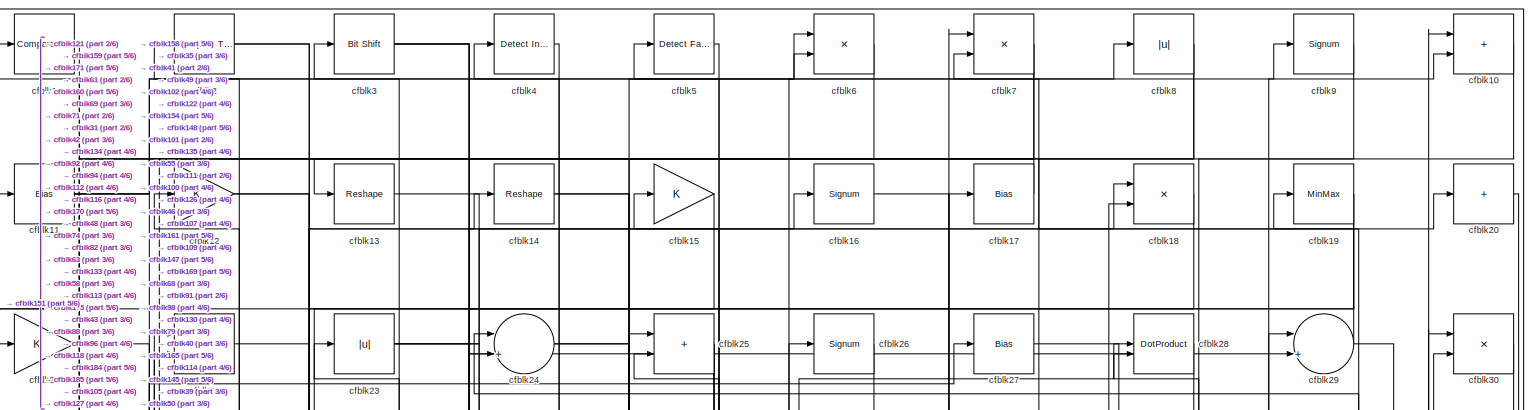
[diagram: root canvas - part 1/6, full width, top band]
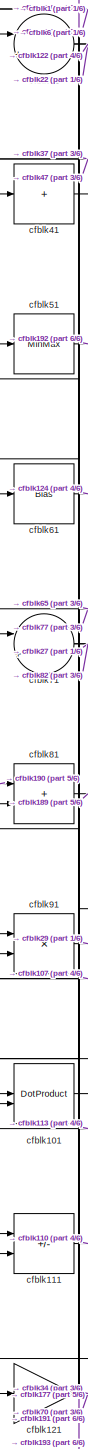
[diagram: root canvas - part 2/6, middle left region]
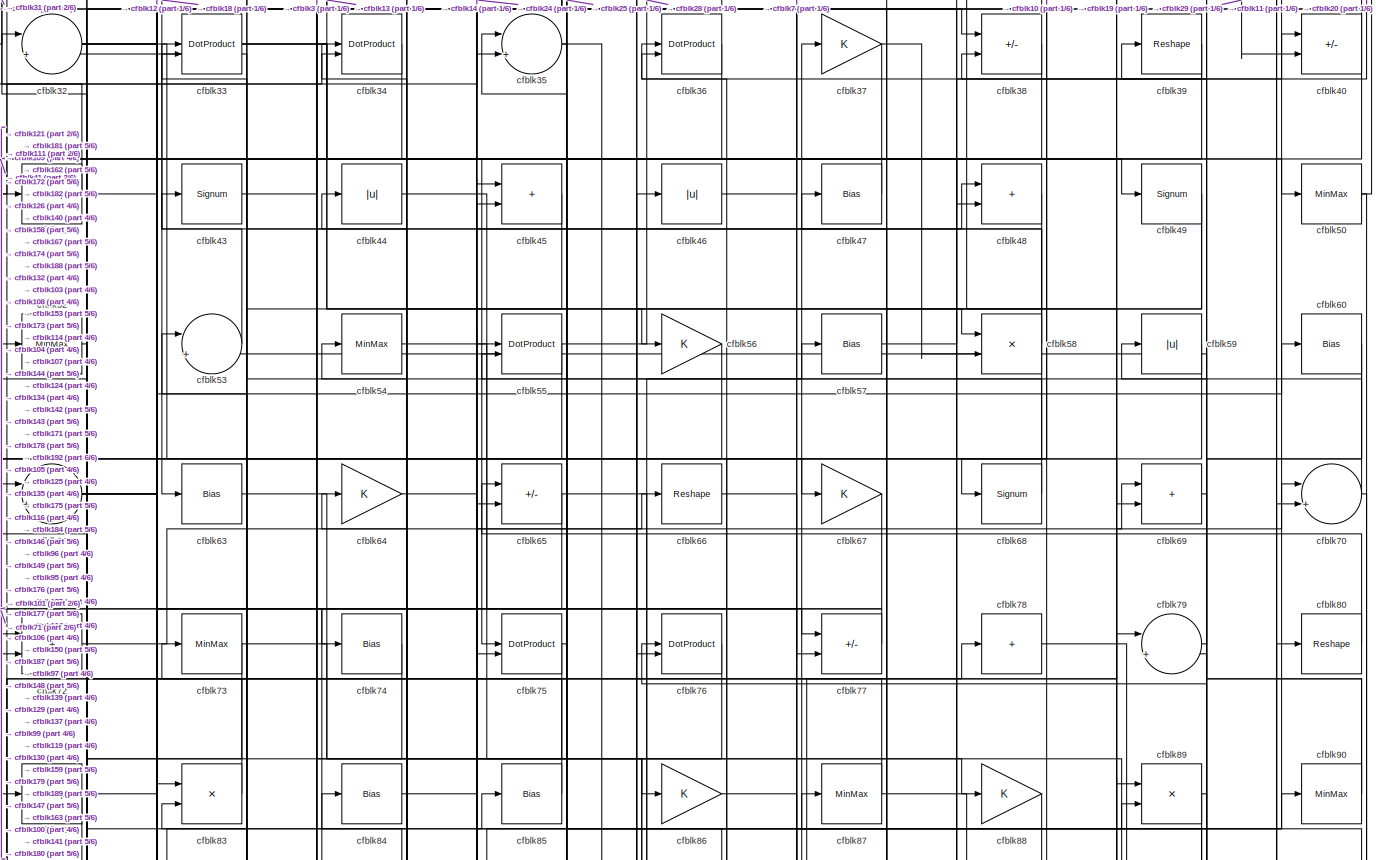
[diagram: root canvas - part 3/6, full width, top band]
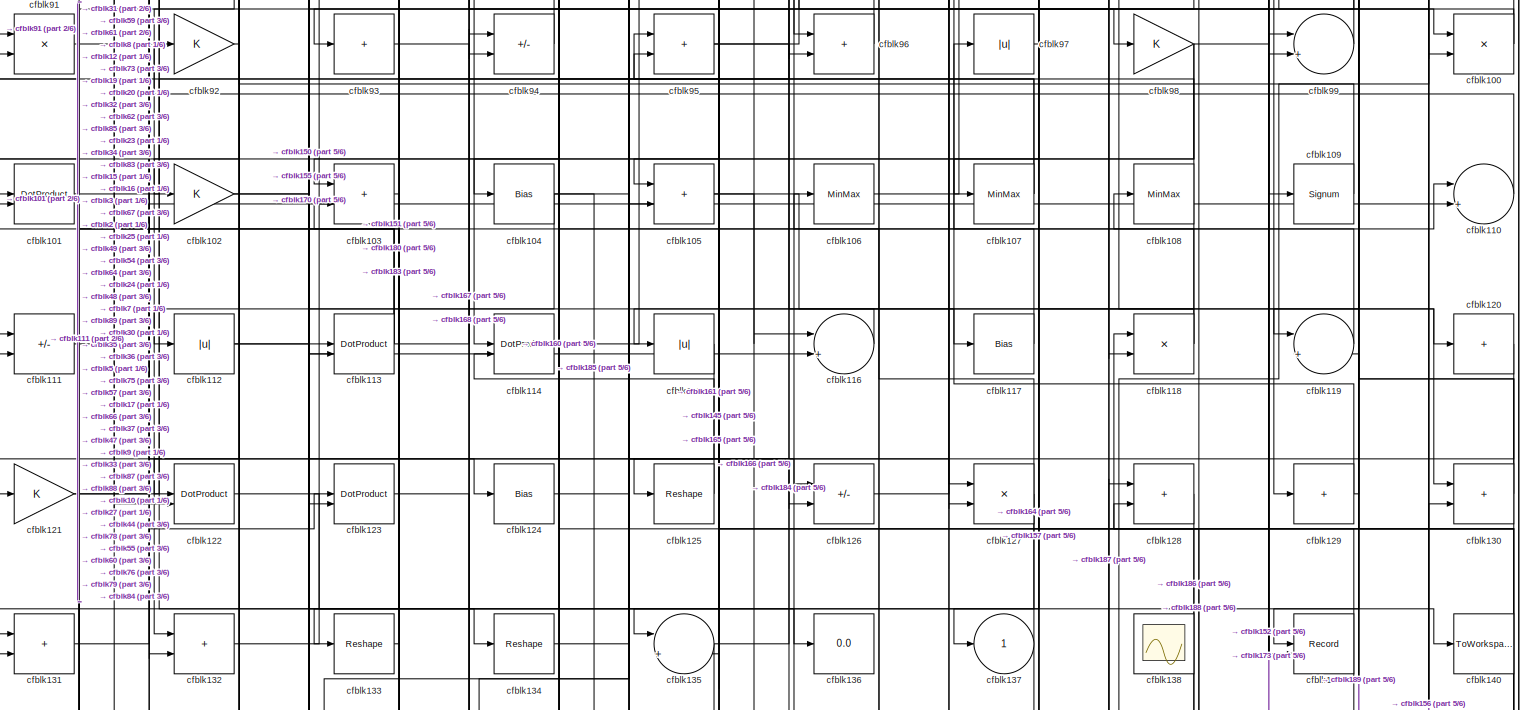
[diagram: root canvas - part 4/6, full width, middle band]
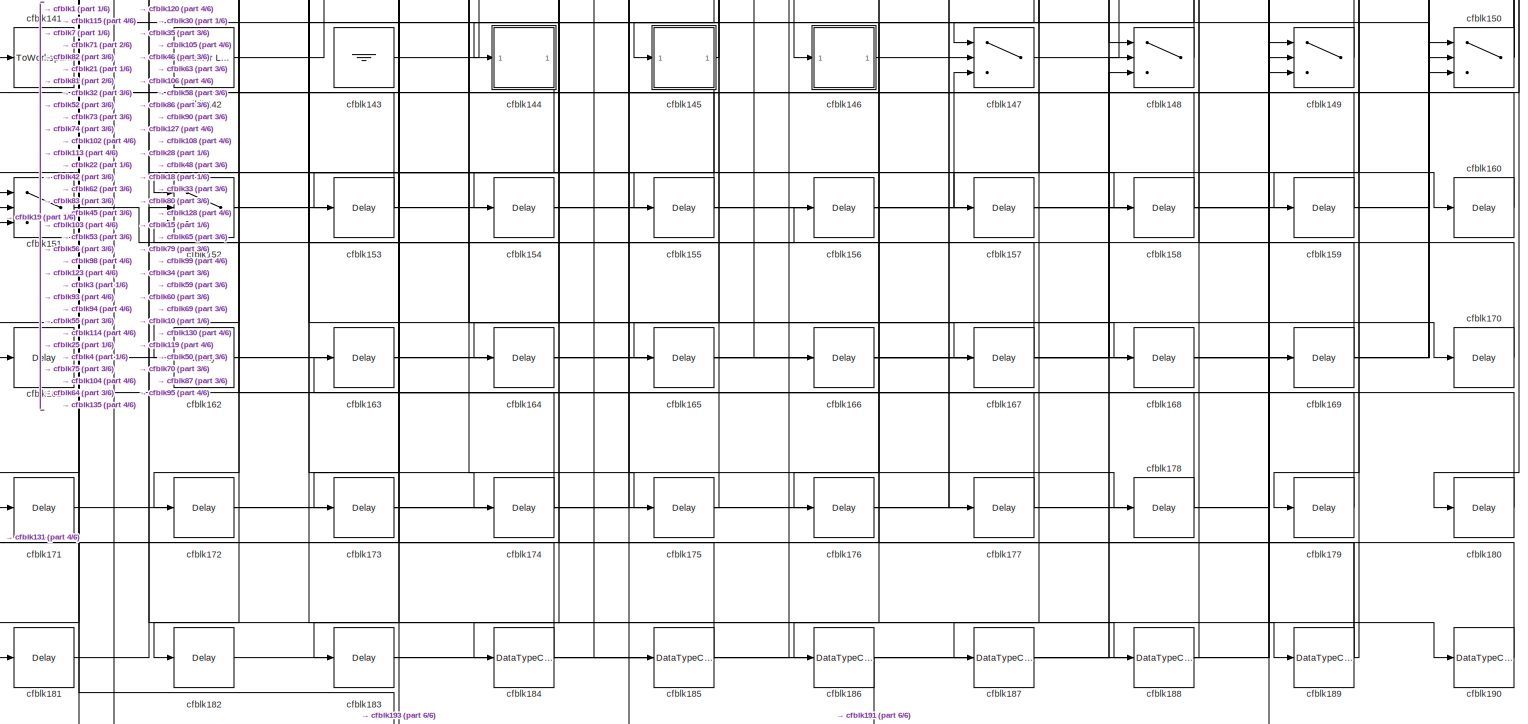
[diagram: root canvas - part 5/6, full width, bottom band]
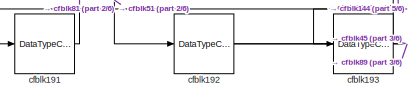
[diagram: root canvas - part 6/6, bottom left region]
MODEL slx_4fd2ff61f84c
KIND model
CONFIG AbsTol = auto
CONFIG EnableMultiTasking = off
CONFIG FixedStep = auto
CONFIG MaxStep = auto
CONFIG MinStep = auto
CONFIG RelTol = 1e-3
CONFIG SampleTimeConstraint = Unconstrained
CONFIG SolverName = VariableStepAuto
CONFIG StartTime = 0.0
CONFIG StopTime = 10.0
BLOCK [Reference] cfblk1  REF=hdlsllib/Logic and Bit
Operations/Compare
To Zero
  SourceBlock = hdlsllib/Logic and Bit\nOperations/Compare\nTo Zero
  SourceType = Compare To Zero
BLOCK [Sum] cfblk10
  IconShape = rectangular
BLOCK [Product] cfblk100
  Inputs = */
  RndMeth = Zero
  SaturateOnIntegerOverflow = on
BLOCK [DotProduct] cfblk101
  OutDataTypeStr = Inherit: Inherit via internal rule
BLOCK [Gain] cfblk102
BLOCK [Sum] cfblk103
  IconShape = rectangular
BLOCK [Bias] cfblk104
  Bias = 0.0
  SaturateOnIntegerOverflow = off
BLOCK [Sum] cfblk105
  IconShape = rectangular
BLOCK [MinMax] cfblk106
BLOCK [MinMax] cfblk107
BLOCK [MinMax] cfblk108
BLOCK [Signum] cfblk109
BLOCK [Bias] cfblk11
  Bias = 0.0
  SaturateOnIntegerOverflow = off
BLOCK [Sum] cfblk110
  Inputs = |++
BLOCK [Sum] cfblk111
  IconShape = rectangular
  Inputs = +-
BLOCK [Abs] cfblk112
  SaturateOnIntegerOverflow = off
BLOCK [DotProduct] cfblk113
  OutDataTypeStr = Inherit: Inherit via internal rule
BLOCK [DotProduct] cfblk114
  OutDataTypeStr = Inherit: Inherit via internal rule
BLOCK [Abs] cfblk115
  SaturateOnIntegerOverflow = off
BLOCK [Sum] cfblk116
  Inputs = |++
BLOCK [Bias] cfblk117
  Bias = 0.0
  SaturateOnIntegerOverflow = off
BLOCK [Product] cfblk118
  Inputs = */
  RndMeth = Zero
  SaturateOnIntegerOverflow = on
BLOCK [Sum] cfblk119
  Inputs = |++
BLOCK [Gain] cfblk12
BLOCK [Sum] cfblk120
  IconShape = rectangular
  Inputs = +
BLOCK [Gain] cfblk121
BLOCK [DotProduct] cfblk122
  OutDataTypeStr = Inherit: Inherit via internal rule
BLOCK [DotProduct] cfblk123
  OutDataTypeStr = Inherit: Inherit via internal rule
BLOCK [Bias] cfblk124
  Bias = 0.0
  SaturateOnIntegerOverflow = off
BLOCK [Reshape] cfblk125
BLOCK [Sum] cfblk126
  IconShape = rectangular
  Inputs = +-
BLOCK [Product] cfblk127
  Inputs = */
  RndMeth = Zero
  SaturateOnIntegerOverflow = on
BLOCK [Sum] cfblk128
  IconShape = rectangular
BLOCK [Sum] cfblk129
  IconShape = rectangular
  Inputs = +
BLOCK [Reshape] cfblk13
BLOCK [Sum] cfblk130
  IconShape = rectangular
BLOCK [Sum] cfblk131
  IconShape = rectangular
BLOCK [Sum] cfblk132
  IconShape = rectangular
BLOCK [Reshape] cfblk133
BLOCK [Reshape] cfblk134
BLOCK [Sum] cfblk135
  Inputs = |++
BLOCK [Display] cfblk136
  Decimation = 1
BLOCK [Outport] cfblk137
  VectorParamsAs1DForOutWhenUnconnected = off
BLOCK [Scope] cfblk138
  Floating = on
  NumInputPorts = 1
  ScopeSpecificationString = Simulink.scopes.TimeScopeBlockCfg('CurrentConfiguration', extmgr.ConfigurationSet(extmgr.Configuration('Core','General UI',true,'FigureColor',[0.156862745098039 0.156862745098039 0.156862745098039]),extmgr.Configuration('Core','Source UI',true),extmgr.Configuration('Sources','WiredSimulink',true,'DataLoggingVariableName','ScopeData1','DataLoggingSaveFormat','StructureWithTime','DataLoggingLimitDat...<+2713ch>
BLOCK [Record] cfblk139
  CompatibilityTag = XY
  FileSettingsInternal = {"entries":[{"content":{"excelSettings":{"content":{},"type":"Streamout.ExcelSettings"}},"type":"Streamout.FileSettingStorage","uuid":""}],"packageUris":["http:\/\/schema.mathworks.com\/mf0\/streamout_blocks\/R2020a"],"version":"1.0"}
  Layout = [1 1]
  SignalsInternal = {"entries":[{"content":{},"type":"RecordBlkView.InputSignals","uuid":""}],"packageUris":["http:\/\/schema.mathworks.com\/mf0\/streamout_blocks\/R2020a"],"version":"1.0"}
  VisualizationBindings = {"xyplotplugin":{"info":[{"series":[{"bindingParametersList":[{"parameter":"X-Axis","signalID":6435,"signalName":"cfblk89"},{"parameter":"Y-Axis","signalID":6439,"signalName":"cfblk33"}],"seriesID":26884}],"subplotID":1}]}}
  st = -1
BLOCK [Reshape] cfblk14
BLOCK [ToWorkspace] cfblk140
  MaxDataPoints = inf
  SampleTime = -1
  SaveFormat = Timeseries
  VariableName = simout
BLOCK [ToWorkspace] cfblk141
  MaxDataPoints = inf
  SampleTime = -1
  SaveFormat = Timeseries
  VariableName = simout
BLOCK [Reference] cfblk142  REF=hdlsllib/Sources/Counter
Limited
  SourceBlock = hdlsllib/Sources/Counter\nLimited
  SourceType = Counter Limited
BLOCK [Ground] cfblk143
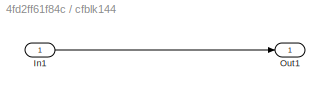
BLOCK [SubSystem] cfblk144
  LibrarySourceBlock = hdlsllib/Ports &\nSubsystems/Subsystem
BLOCK [Inport] cfblk144/In1
BLOCK [Outport] cfblk144/Out1
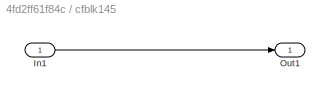
BLOCK [SubSystem] cfblk145
  LibrarySourceBlock = hdlsllib/Ports &\nSubsystems/Subsystem
BLOCK [Inport] cfblk145/In1
BLOCK [Outport] cfblk145/Out1
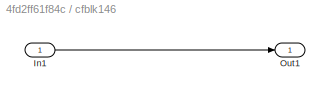
BLOCK [SubSystem] cfblk146
  LibrarySourceBlock = hdlsllib/Ports &\nSubsystems/Subsystem
BLOCK [Inport] cfblk146/In1
BLOCK [Outport] cfblk146/Out1
BLOCK [Switch] cfblk147
  InputSameDT = off
  SaturateOnIntegerOverflow = off
BLOCK [Switch] cfblk148
  InputSameDT = off
  SaturateOnIntegerOverflow = off
BLOCK [Switch] cfblk149
  InputSameDT = off
  SaturateOnIntegerOverflow = off
BLOCK [Gain] cfblk15
BLOCK [Switch] cfblk150
  InputSameDT = off
  SaturateOnIntegerOverflow = off
BLOCK [Switch] cfblk151
  InputSameDT = off
  SaturateOnIntegerOverflow = off
BLOCK [Switch] cfblk152
  InputSameDT = off
  SaturateOnIntegerOverflow = off
BLOCK [Delay] cfblk153
  InputPortMap = u0
  SampleTime = 1
BLOCK [Delay] cfblk154
  InputPortMap = u0
  SampleTime = 1
BLOCK [Delay] cfblk155
  InputPortMap = u0
  SampleTime = 1
BLOCK [Delay] cfblk156
  InputPortMap = u0
  SampleTime = 1
BLOCK [Delay] cfblk157
  InputPortMap = u0
  SampleTime = 1
BLOCK [Delay] cfblk158
  InputPortMap = u0
  SampleTime = 1
BLOCK [Delay] cfblk159
  InputPortMap = u0
  SampleTime = 1
BLOCK [Signum] cfblk16
BLOCK [Delay] cfblk160
  InputPortMap = u0
  SampleTime = 1
BLOCK [Delay] cfblk161
  InputPortMap = u0
  SampleTime = 1
BLOCK [Delay] cfblk162
  InputPortMap = u0
  SampleTime = 1
BLOCK [Delay] cfblk163
  InputPortMap = u0
  SampleTime = 1
BLOCK [Delay] cfblk164
  InputPortMap = u0
  SampleTime = 1
BLOCK [Delay] cfblk165
  InputPortMap = u0
  SampleTime = 1
BLOCK [Delay] cfblk166
  InputPortMap = u0
  SampleTime = 1
BLOCK [Delay] cfblk167
  InputPortMap = u0
  SampleTime = 1
BLOCK [Delay] cfblk168
  InputPortMap = u0
  SampleTime = 1
BLOCK [Delay] cfblk169
  InputPortMap = u0
  SampleTime = 1
BLOCK [Bias] cfblk17
  Bias = 0.0
  SaturateOnIntegerOverflow = off
BLOCK [Delay] cfblk170
  InputPortMap = u0
  SampleTime = 1
BLOCK [Delay] cfblk171
  InputPortMap = u0
  SampleTime = 1
BLOCK [Delay] cfblk172
  InputPortMap = u0
  SampleTime = 1
BLOCK [Delay] cfblk173
  InputPortMap = u0
  SampleTime = 1
BLOCK [Delay] cfblk174
  InputPortMap = u0
  SampleTime = 1
BLOCK [Delay] cfblk175
  InputPortMap = u0
  SampleTime = 1
BLOCK [Delay] cfblk176
  InputPortMap = u0
  SampleTime = 1
BLOCK [Delay] cfblk177
  InputPortMap = u0
  SampleTime = 1
BLOCK [Delay] cfblk178
  InputPortMap = u0
  SampleTime = 1
BLOCK [Delay] cfblk179
  InputPortMap = u0
  SampleTime = 1
BLOCK [Product] cfblk18
  Inputs = */
  RndMeth = Zero
  SaturateOnIntegerOverflow = on
BLOCK [Delay] cfblk180
  InputPortMap = u0
  SampleTime = 1
BLOCK [Delay] cfblk181
  InputPortMap = u0
  SampleTime = 1
BLOCK [Delay] cfblk182
  InputPortMap = u0
  SampleTime = 1
BLOCK [Delay] cfblk183
  InputPortMap = u0
  SampleTime = 1
BLOCK [DataTypeConversion] cfblk184
  RndMeth = Floor
  SaturateOnIntegerOverflow = off
BLOCK [DataTypeConversion] cfblk185
  OutDataTypeStr = uint8
  RndMeth = Floor
  SaturateOnIntegerOverflow = off
BLOCK [DataTypeConversion] cfblk186
  RndMeth = Floor
  SaturateOnIntegerOverflow = off
BLOCK [DataTypeConversion] cfblk187
  OutDataTypeStr = uint8
  RndMeth = Floor
  SaturateOnIntegerOverflow = off
BLOCK [DataTypeConversion] cfblk188
  OutDataTypeStr = uint8
  RndMeth = Floor
  SaturateOnIntegerOverflow = off
BLOCK [DataTypeConversion] cfblk189
  RndMeth = Floor
  SaturateOnIntegerOverflow = off
BLOCK [MinMax] cfblk19
BLOCK [DataTypeConversion] cfblk190
  OutDataTypeStr = uint8
  RndMeth = Floor
  SaturateOnIntegerOverflow = off
BLOCK [DataTypeConversion] cfblk191
  OutDataTypeStr = uint8
  RndMeth = Floor
  SaturateOnIntegerOverflow = off
BLOCK [DataTypeConversion] cfblk192
  RndMeth = Floor
  SaturateOnIntegerOverflow = off
BLOCK [DataTypeConversion] cfblk193
  OutDataTypeStr = uint8
  RndMeth = Floor
  SaturateOnIntegerOverflow = off
BLOCK [Reference] cfblk2  REF=hdlsllib/Logic and Bit
Operations/Compare
To Constant
  SourceBlock = hdlsllib/Logic and Bit\nOperations/Compare\nTo Constant
  SourceType = Compare To Constant
BLOCK [Sum] cfblk20
  IconShape = rectangular
  Inputs = +
BLOCK [Gain] cfblk21
BLOCK [Product] cfblk22
  Inputs = */
  RndMeth = Zero
  SaturateOnIntegerOverflow = on
BLOCK [Abs] cfblk23
  SaturateOnIntegerOverflow = off
BLOCK [Sum] cfblk24
  Inputs = |++
BLOCK [Sum] cfblk25
  IconShape = rectangular
BLOCK [Signum] cfblk26
BLOCK [Bias] cfblk27
  Bias = 0.0
  SaturateOnIntegerOverflow = off
BLOCK [DotProduct] cfblk28
  OutDataTypeStr = Inherit: Inherit via internal rule
BLOCK [Sum] cfblk29
  Inputs = |++
BLOCK [Reference] cfblk3  REF=hdlsllib/Logic and Bit
Operations/Bit Shift
  SourceBlock = hdlsllib/Logic and Bit\nOperations/Bit Shift
  SourceType = Bit Shift
BLOCK [Product] cfblk30
  Inputs = */
  RndMeth = Zero
  SaturateOnIntegerOverflow = on
BLOCK [Sum] cfblk31
  Inputs = |++
BLOCK [Sum] cfblk32
  Inputs = |++
BLOCK [DotProduct] cfblk33
  OutDataTypeStr = Inherit: Inherit via internal rule
BLOCK [DotProduct] cfblk34
  OutDataTypeStr = Inherit: Inherit via internal rule
BLOCK [Sum] cfblk35
  Inputs = |++
BLOCK [DotProduct] cfblk36
  OutDataTypeStr = Inherit: Inherit via internal rule
BLOCK [Gain] cfblk37
BLOCK [Sum] cfblk38
  IconShape = rectangular
  Inputs = +-
BLOCK [Reshape] cfblk39
BLOCK [Reference] cfblk4  REF=simulink/Logic and Bit
Operations/Detect
Increase
  LibrarySourceBlock = hdlsllib/Logic and Bit\nOperations/Detect\nIncrease
  SourceBlock = simulink/Logic and Bit\nOperations/Detect\nIncrease
  SourceType = Detect Increase
BLOCK [Sum] cfblk40
  IconShape = rectangular
  Inputs = +-
BLOCK [Sum] cfblk41
  IconShape = rectangular
  Inputs = +
BLOCK [Reshape] cfblk42
BLOCK [Signum] cfblk43
BLOCK [Abs] cfblk44
  SaturateOnIntegerOverflow = off
BLOCK [Sum] cfblk45
  IconShape = rectangular
BLOCK [Abs] cfblk46
  SaturateOnIntegerOverflow = off
BLOCK [Bias] cfblk47
  Bias = 0.0
  SaturateOnIntegerOverflow = off
BLOCK [Sum] cfblk48
  IconShape = rectangular
BLOCK [Signum] cfblk49
BLOCK [Reference] cfblk5  REF=hdlsllib/Logic and Bit
Operations/Detect Fall
Nonpositive
  SourceBlock = hdlsllib/Logic and Bit\nOperations/Detect Fall\nNonpositive
  SourceType = Detect Fall Nonpositive
BLOCK [MinMax] cfblk50
BLOCK [MinMax] cfblk51
BLOCK [MinMax] cfblk52
BLOCK [Sum] cfblk53
  Inputs = |++
BLOCK [MinMax] cfblk54
BLOCK [DotProduct] cfblk55
  OutDataTypeStr = Inherit: Inherit via internal rule
BLOCK [Gain] cfblk56
BLOCK [Bias] cfblk57
  Bias = 0.0
  SaturateOnIntegerOverflow = off
BLOCK [Product] cfblk58
  Inputs = */
  RndMeth = Zero
  SaturateOnIntegerOverflow = on
BLOCK [Abs] cfblk59
  SaturateOnIntegerOverflow = off
BLOCK [Product] cfblk6
  Inputs = */
  RndMeth = Zero
  SaturateOnIntegerOverflow = on
BLOCK [Bias] cfblk60
  Bias = 0.0
  SaturateOnIntegerOverflow = off
BLOCK [Bias] cfblk61
  Bias = 0.0
  SaturateOnIntegerOverflow = off
BLOCK [Sum] cfblk62
  Inputs = |++
BLOCK [Bias] cfblk63
  Bias = 0.0
  SaturateOnIntegerOverflow = off
BLOCK [Gain] cfblk64
BLOCK [Sum] cfblk65
  IconShape = rectangular
  Inputs = +-
BLOCK [Reshape] cfblk66
BLOCK [Gain] cfblk67
BLOCK [Signum] cfblk68
BLOCK [Sum] cfblk69
  IconShape = rectangular
BLOCK [Product] cfblk7
  Inputs = */
  RndMeth = Zero
  SaturateOnIntegerOverflow = on
BLOCK [Sum] cfblk70
  Inputs = |++
BLOCK [Sum] cfblk71
  Inputs = |++
BLOCK [Sum] cfblk72
  IconShape = rectangular
BLOCK [MinMax] cfblk73
BLOCK [Bias] cfblk74
  Bias = 0.0
  SaturateOnIntegerOverflow = off
BLOCK [DotProduct] cfblk75
  OutDataTypeStr = Inherit: Inherit via internal rule
BLOCK [DotProduct] cfblk76
  OutDataTypeStr = Inherit: Inherit via internal rule
BLOCK [Sum] cfblk77
  IconShape = rectangular
  Inputs = +-
BLOCK [Sum] cfblk78
  IconShape = rectangular
  Inputs = +
BLOCK [Sum] cfblk79
  Inputs = |++
BLOCK [Abs] cfblk8
  SaturateOnIntegerOverflow = off
BLOCK [Reshape] cfblk80
BLOCK [Sum] cfblk81
  IconShape = rectangular
BLOCK [Reshape] cfblk82
BLOCK [Product] cfblk83
  Inputs = */
  RndMeth = Zero
  SaturateOnIntegerOverflow = on
BLOCK [Bias] cfblk84
  Bias = 0.0
  SaturateOnIntegerOverflow = off
BLOCK [Bias] cfblk85
  Bias = 0.0
  SaturateOnIntegerOverflow = off
BLOCK [Gain] cfblk86
BLOCK [MinMax] cfblk87
BLOCK [Gain] cfblk88
BLOCK [Product] cfblk89
  Inputs = */
  RndMeth = Zero
  SaturateOnIntegerOverflow = on
BLOCK [Signum] cfblk9
BLOCK [MinMax] cfblk90
BLOCK [Product] cfblk91
  Inputs = */
  RndMeth = Zero
  SaturateOnIntegerOverflow = on
BLOCK [Gain] cfblk92
BLOCK [Sum] cfblk93
  IconShape = rectangular
  Inputs = +
BLOCK [Sum] cfblk94
  IconShape = rectangular
  Inputs = +-
BLOCK [Sum] cfblk95
  IconShape = rectangular
BLOCK [Sum] cfblk96
  IconShape = rectangular
BLOCK [Abs] cfblk97
  SaturateOnIntegerOverflow = off
BLOCK [Gain] cfblk98
BLOCK [Sum] cfblk99
  Inputs = |++
NET cfblk100:1 -> cfblk84:1, cfblk93:1
LINE cfblk101:1 -> cfblk26:1
NET cfblk102:1 -> cfblk150:2, cfblk155:1
LINE cfblk103:1 -> cfblk133:1
NET cfblk104:1 -> cfblk123:2, cfblk126:2, cfblk185:1
NET cfblk105:1 -> cfblk120:1, cfblk166:1
LINE cfblk106:1 -> cfblk78:1
NET cfblk107:1 -> cfblk64:1, cfblk91:1
NET cfblk108:1 -> cfblk157:1, cfblk83:2
LINE cfblk109:1 -> cfblk62:1
LINE cfblk10:1 -> cfblk68:1
LINE cfblk110:1 -> cfblk92:1
LINE cfblk111:1 -> cfblk110:2
NET cfblk112:1 -> cfblk110:1, cfblk20:1
NET cfblk113:1 -> cfblk101:2, cfblk16:1, cfblk31:2, cfblk91:2
LINE cfblk114:1 -> cfblk30:2
LINE cfblk115:1 -> cfblk151:1
LINE cfblk116:1 -> cfblk112:1
LINE cfblk117:1 -> cfblk37:1
NET cfblk118:1 -> cfblk108:1, cfblk115:1
LINE cfblk119:1 -> cfblk44:1
NET cfblk11:1 -> cfblk69:2, cfblk6:1, cfblk9:1
LINE cfblk120:1 -> cfblk165:1
NET cfblk121:1 -> cfblk34:2, cfblk70:1
LINE cfblk122:1 -> cfblk136:1
LINE cfblk123:1 -> cfblk167:1
LINE cfblk124:1 -> cfblk48:1
LINE cfblk125:1 -> cfblk54:1
LINE cfblk126:1 -> cfblk17:1
NET cfblk127:1 -> cfblk131:2, cfblk164:1, cfblk36:1
LINE cfblk128:1 -> cfblk186:1
NET cfblk129:1 -> cfblk79:2, cfblk97:1
NET cfblk12:1 -> cfblk48:2, cfblk74:1
NET cfblk130:1 -> cfblk118:1, cfblk24:1, cfblk76:1
LINE cfblk131:1 -> cfblk123:1
LINE cfblk132:1 -> cfblk85:1
LINE cfblk133:1 -> cfblk23:1
LINE cfblk134:1 -> cfblk89:2
NET cfblk135:1 -> cfblk161:1, cfblk8:1
LINE cfblk13:1 -> cfblk58:1
LINE cfblk142:1 -> cfblk45:1
LINE cfblk143:1 -> cfblk55:1
LINE cfblk144/In1:1 -> cfblk144/Out1:1
LINE cfblk144:1 -> cfblk193:1
LINE cfblk145/In1:1 -> cfblk145/Out1:1
NET cfblk145:1 -> cfblk152:1, cfblk95:1
LINE cfblk146/In1:1 -> cfblk146/Out1:1
LINE cfblk146:1 -> cfblk90:1
LINE cfblk147:1 -> cfblk80:1
LINE cfblk148:1 -> cfblk15:1
LINE cfblk149:1 -> cfblk34:1
NET cfblk14:1 -> cfblk49:1, cfblk50:1
NET cfblk150:1 -> cfblk119:2, cfblk87:1, cfblk95:2
LINE cfblk151:1 -> cfblk156:1
NET cfblk152:1 -> cfblk147:3, cfblk99:2
LINE cfblk153:1 -> cfblk32:1
LINE cfblk154:1 -> cfblk30:1
LINE cfblk155:1 -> cfblk94:1
LINE cfblk156:1 -> cfblk130:2
LINE cfblk157:1 -> cfblk149:2
LINE cfblk158:1 -> cfblk25:1
LINE cfblk159:1 -> cfblk1:1
LINE cfblk15:1 -> cfblk94:2
LINE cfblk160:1 -> cfblk114:2
LINE cfblk161:1 -> cfblk18:2
LINE cfblk162:1 -> cfblk150:3
LINE cfblk163:1 -> cfblk70:2
LINE cfblk164:1 -> cfblk150:1
LINE cfblk165:1 -> cfblk10:1
LINE cfblk166:1 -> cfblk148:2
LINE cfblk167:1 -> cfblk83:1
LINE cfblk168:1 -> cfblk190:1
LINE cfblk169:1 -> cfblk28:2
LINE cfblk16:1 -> cfblk100:2
LINE cfblk170:1 -> cfblk113:1
LINE cfblk171:1 -> cfblk65:2
LINE cfblk172:1 -> cfblk79:1
LINE cfblk173:1 -> cfblk99:1
LINE cfblk174:1 -> cfblk152:3
LINE cfblk175:1 -> cfblk35:1
LINE cfblk176:1 -> cfblk147:2
LINE cfblk177:1 -> cfblk71:2
LINE cfblk178:1 -> cfblk33:2
LINE cfblk179:1 -> cfblk53:1
LINE cfblk17:1 -> cfblk13:1
LINE cfblk180:1 -> cfblk103:2
LINE cfblk181:1 -> cfblk152:2
LINE cfblk182:1 -> cfblk149:1
LINE cfblk183:1 -> cfblk148:3
NET cfblk184:1 -> cfblk131:1, cfblk46:1
LINE cfblk185:1 -> cfblk4:1
NET cfblk186:1 -> cfblk169:1, cfblk191:1
LINE cfblk187:1 -> cfblk128:1
LINE cfblk188:1 -> cfblk128:2
NET cfblk189:1 -> cfblk106:1, cfblk163:1, cfblk59:1
LINE cfblk18:1 -> cfblk63:1
LINE cfblk190:1 -> cfblk81:1
LINE cfblk191:1 -> cfblk81:2
NET cfblk192:1 -> cfblk45:2, cfblk89:1
LINE cfblk193:1 -> cfblk51:1
NET cfblk19:1 -> cfblk113:2, cfblk151:3
LINE cfblk1:1 -> cfblk121:1
LINE cfblk20:1 -> cfblk39:1
LINE cfblk21:1 -> cfblk160:1
LINE cfblk22:1 -> cfblk170:1
NET cfblk23:1 -> cfblk118:2, cfblk18:1, cfblk24:2
NET cfblk24:1 -> cfblk127:2, cfblk35:2
NET cfblk25:1 -> cfblk102:1, cfblk122:1, cfblk154:1
LINE cfblk26:1 -> cfblk111:1
LINE cfblk27:1 -> cfblk109:1
LINE cfblk28:1 -> cfblk147:1
NET cfblk29:1 -> cfblk40:2, cfblk7:2
NET cfblk2:1 -> cfblk116:2, cfblk98:1
LINE cfblk30:1 -> cfblk145:1
NET cfblk31:1 -> cfblk122:2, cfblk22:2
NET cfblk32:1 -> cfblk126:1, cfblk38:1, cfblk67:1, cfblk77:2
NET cfblk33:1 -> cfblk139:2, cfblk148:1, cfblk56:1
LINE cfblk34:1 -> cfblk103:1
NET cfblk35:1 -> cfblk116:1, cfblk125:1
LINE cfblk36:1 -> cfblk105:1
NET cfblk37:1 -> cfblk111:2, cfblk58:2
LINE cfblk38:1 -> cfblk72:1
NET cfblk39:1 -> cfblk36:2, cfblk75:1
NET cfblk3:1 -> cfblk175:1, cfblk88:1, cfblk96:2
NET cfblk40:1 -> cfblk31:1, cfblk42:1
LINE cfblk41:1 -> cfblk6:2
NET cfblk42:1 -> cfblk188:1, cfblk22:1
LINE cfblk43:1 -> cfblk29:2
LINE cfblk44:1 -> cfblk129:1
LINE cfblk45:1 -> cfblk173:1
LINE cfblk46:1 -> cfblk7:1
LINE cfblk47:1 -> cfblk41:1
LINE cfblk48:1 -> cfblk187:1
NET cfblk49:1 -> cfblk104:1, cfblk76:2
LINE cfblk4:1 -> cfblk184:1
NET cfblk50:1 -> cfblk11:1, cfblk180:1
LINE cfblk51:1 -> cfblk192:1
LINE cfblk52:1 -> cfblk182:1
LINE cfblk53:1 -> cfblk33:1
LINE cfblk54:1 -> cfblk77:1
NET cfblk55:1 -> cfblk28:1, cfblk72:2
LINE cfblk56:1 -> cfblk153:1
LINE cfblk57:1 -> cfblk40:1
NET cfblk58:1 -> cfblk176:1, cfblk3:1, cfblk43:1
LINE cfblk59:1 -> cfblk132:2
LINE cfblk5:1 -> cfblk135:1
NET cfblk60:1 -> cfblk119:1, cfblk159:1
LINE cfblk61:1 -> cfblk124:1
NET cfblk62:1 -> cfblk140:1, cfblk158:1, cfblk174:1, cfblk60:1, cfblk75:2
LINE cfblk63:1 -> cfblk146:1
LINE cfblk64:1 -> cfblk178:1
NET cfblk65:1 -> cfblk101:1, cfblk149:3
LINE cfblk66:1 -> cfblk127:1
LINE cfblk67:1 -> cfblk114:1
LINE cfblk68:1 -> cfblk25:2
LINE cfblk69:1 -> cfblk179:1
LINE cfblk6:1 -> cfblk61:1
NET cfblk70:1 -> cfblk141:1, cfblk32:2
NET cfblk71:1 -> cfblk27:1, cfblk82:1
LINE cfblk72:1 -> cfblk69:1
NET cfblk73:1 -> cfblk162:1, cfblk96:1
LINE cfblk74:1 -> cfblk172:1
NET cfblk75:1 -> cfblk135:2, cfblk144:1
LINE cfblk76:1 -> cfblk86:1
LINE cfblk77:1 -> cfblk71:1
LINE cfblk78:1 -> cfblk100:1
LINE cfblk79:1 -> cfblk19:1
NET cfblk7:1 -> cfblk105:2, cfblk171:1
LINE cfblk80:1 -> cfblk65:1
LINE cfblk81:1 -> cfblk189:1
NET cfblk82:1 -> cfblk14:1, cfblk181:1
LINE cfblk83:1 -> cfblk62:2
LINE cfblk84:1 -> cfblk66:1
LINE cfblk85:1 -> cfblk73:1
LINE cfblk86:1 -> cfblk177:1
NET cfblk87:1 -> cfblk130:1, cfblk52:1
LINE cfblk88:1 -> cfblk132:1
NET cfblk89:1 -> cfblk137:1, cfblk139:1
NET cfblk8:1 -> cfblk134:1, cfblk21:1
NET cfblk90:1 -> cfblk38:2, cfblk53:2
LINE cfblk91:1 -> cfblk29:1
LINE cfblk92:1 -> cfblk12:1
LINE cfblk93:1 -> cfblk168:1
LINE cfblk94:1 -> cfblk2:1
NET cfblk95:1 -> cfblk117:1, cfblk57:1
LINE cfblk96:1 -> cfblk5:1
LINE cfblk97:1 -> cfblk47:1
NET cfblk98:1 -> cfblk10:2, cfblk151:2, cfblk183:1
LINE cfblk99:1 -> cfblk55:2
LINE cfblk9:1 -> cfblk107:1
note: NET lines group one-source signal fan-out (src -> all destinations, sorted); 1:1 wires keep LINE
